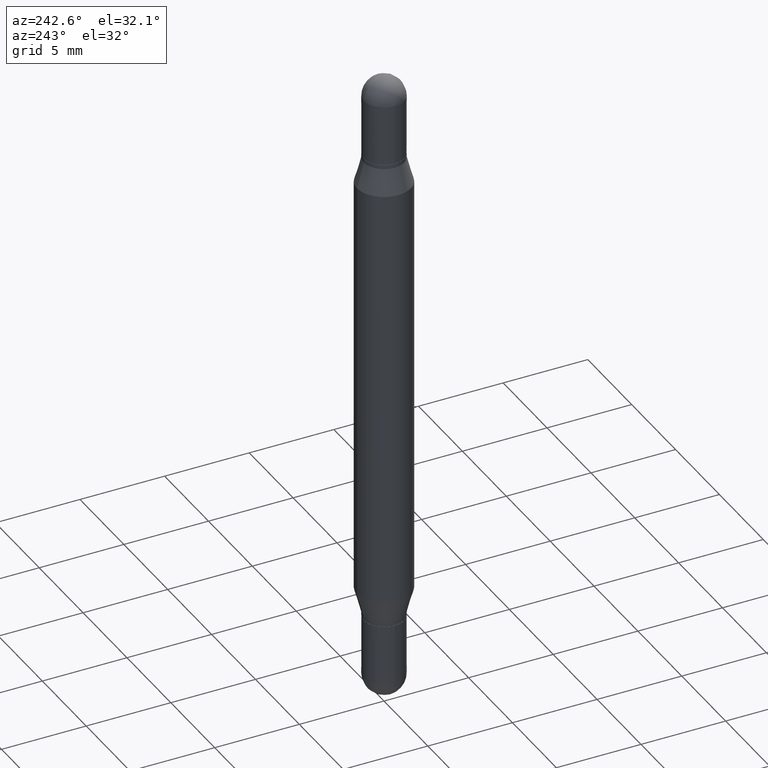
[diagram: clean part render]
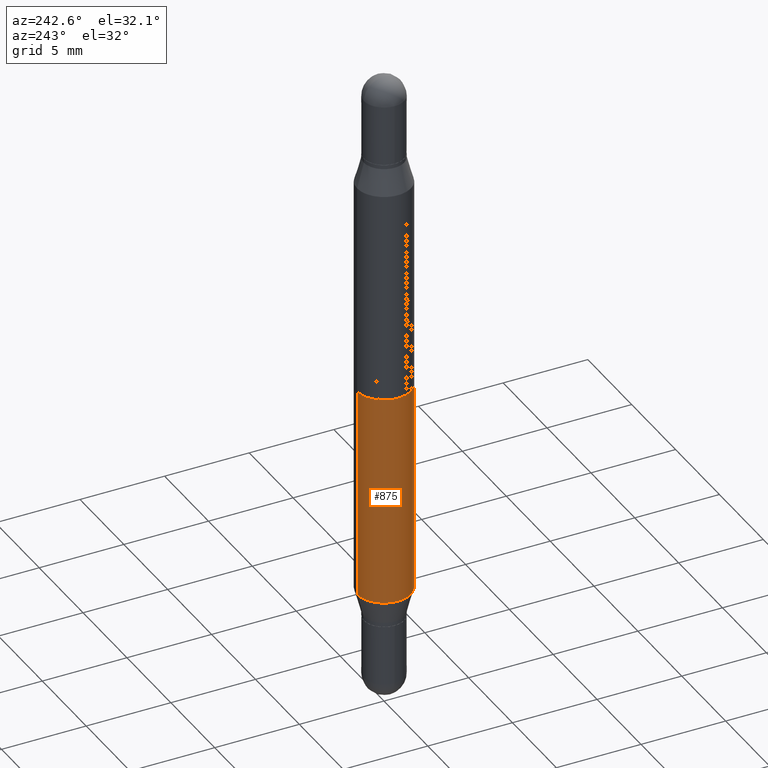
[diagram: same view with one face highlighted and labeled with its STEP entity id]
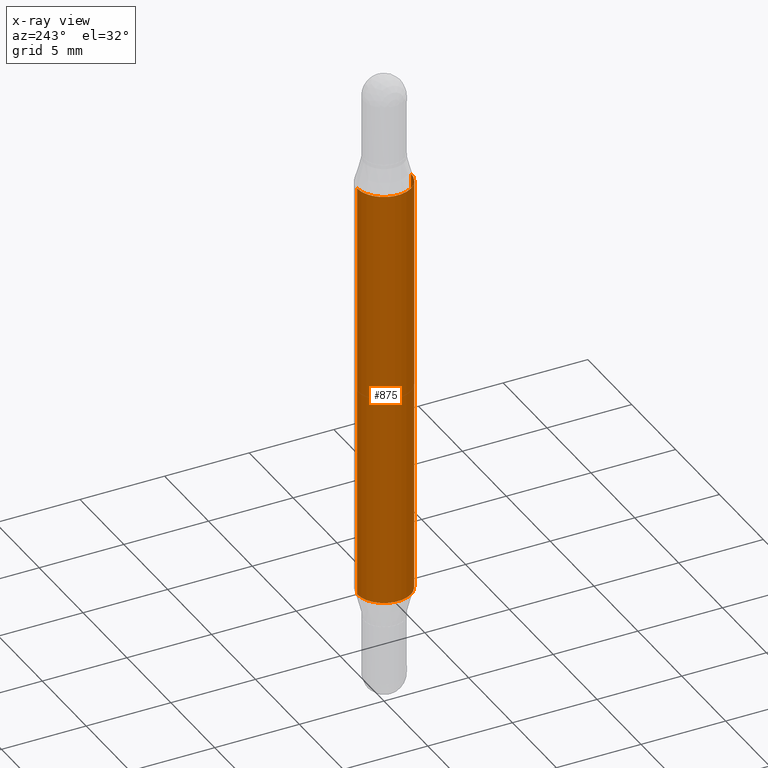
[diagram: x-ray of the same camera — body ghosted, the highlighted face saturated]
A machine part, auxiliary view. The second image highlights one B-rep face of the part: STEP entity #875.
The next image is the same camera in x-ray: the body ghosted, the highlighted face saturated — about 0% of this face is hidden behind the body in this view.
In plain terms, the highlighted cylindrical surface (edge-blend (fillet) strip) has radius 1.5875 mm, axis along (-0, -0, -1).
Its self-contained STEP definition (entity closure, byte-faithful):
#3 = FACE_OUTER_BOUND ( 'NONE', #73, .T. ) ;
#11 = VECTOR ( 'NONE', #383, 39.37007874015748143 ) ;
#12 = EDGE_CURVE ( 'NONE', #548, #465, #454, .T. ) ;
#73 = EDGE_LOOP ( 'NONE', ( #1016, #171, #675, #385 ) ) ;
#79 = AXIS2_PLACEMENT_3D ( 'NONE', #798, #903, #992 ) ;
#98 = DIRECTION ( 'NONE',  ( -6.982962677686265922E-15, -1.000000000000000000, 4.370956789862821150E-15 ) ) ;
#161 = CIRCLE ( 'NONE', #79, 0.06250000000000000000 ) ;
#171 = ORIENTED_EDGE ( 'NONE', *, *, #12, .T. ) ;
#191 = AXIS2_PLACEMENT_3D ( 'NONE', #595, #848, #98 ) ;
#198 = CARTESIAN_POINT ( 'NONE',  ( 4.287811248607390144E-16, 0.06249999999999565625, -1.244780007401924848 ) ) ;
#296 = DIRECTION ( 'NONE',  ( -2.445609517047438880E-29, -3.479815972941410420E-15, -1.000000000000000000 ) ) ;
#383 = DIRECTION ( 'NONE',  ( -2.445609517047438880E-29, -3.479815972941410420E-15, -1.000000000000000000 ) ) ;
#385 = ORIENTED_EDGE ( 'NONE', *, *, #721, .F. ) ;
#430 = VERTEX_POINT ( 'NONE', #951 ) ;
#448 = VECTOR ( 'NONE', #296, 39.37007874015748143 ) ;
#454 = LINE ( 'NONE', #963, #448 ) ;
#465 = VERTEX_POINT ( 'NONE', #198 ) ;
#548 = VERTEX_POINT ( 'NONE', #978 ) ;
#563 = CARTESIAN_POINT ( 'NONE',  ( 3.044245832732528794E-29, -4.345875336214013130E-15, -1.244780007401924626 ) ) ;
#595 = CARTESIAN_POINT ( 'NONE',  ( 0.000000000000000000, -5.228321854365732350E-15, -1.500000000000000444 ) ) ;
#618 = AXIS2_PLACEMENT_3D ( 'NONE', #563, #825, #912 ) ;
#626 = EDGE_CURVE ( 'NONE', #548, #430, #161, .T. ) ;
#675 = ORIENTED_EDGE ( 'NONE', *, *, #1059, .T. ) ;
#680 = CYLINDRICAL_SURFACE ( 'NONE', #191, 0.06250000000000000000 ) ;
#689 = CIRCLE ( 'NONE', #618, 0.06250000000000000000 ) ;
#721 = EDGE_CURVE ( 'NONE', #430, #755, #930, .T. ) ;
#737 = CARTESIAN_POINT ( 'NONE',  ( -4.364351673553611504E-16, -0.06250000000000434375, -1.244780007401924404 ) ) ;
#755 = VERTEX_POINT ( 'NONE', #737 ) ;
#798 = CARTESIAN_POINT ( 'NONE',  ( 3.044245832732528794E-29, -8.967165018103877989E-16, -0.2552199925980758177 ) ) ;
#825 = DIRECTION ( 'NONE',  ( -2.445609517047439160E-29, 3.491279832879563417E-15, 1.000000000000000000 ) ) ;
#848 = DIRECTION ( 'NONE',  ( -2.445609517047439160E-29, -3.479815972941410420E-15, -1.000000000000000000 ) ) ;
#875 = ADVANCED_FACE ( 'NONE', ( #3 ), #680, .T. ) ;
#903 = DIRECTION ( 'NONE',  ( 2.445609517047439160E-29, 3.479815972941410420E-15, 1.000000000000000000 ) ) ;
#912 = DIRECTION ( 'NONE',  ( -6.982962677686265922E-15, -1.000000000000000000, 4.370956789862821150E-15 ) ) ;
#930 = LINE ( 'NONE', #1081, #11 ) ;
#951 = CARTESIAN_POINT ( 'NONE',  ( -4.364351673553612490E-16, -0.06250000000000090206, -0.2552199925980755957 ) ) ;
#963 = CARTESIAN_POINT ( 'NONE',  ( 4.287811248607206733E-16, 0.06249999999999477501, -1.500000000000000666 ) ) ;
#978 = CARTESIAN_POINT ( 'NONE',  ( 4.287811248607510938E-16, 0.06249999999999910488, -0.2552199925980759843 ) ) ;
#992 = DIRECTION ( 'NONE',  ( -6.982962677686265922E-15, -1.000000000000000000, 3.278217592397115862E-15 ) ) ;
#1016 = ORIENTED_EDGE ( 'NONE', *, *, #626, .F. ) ;
#1059 = EDGE_CURVE ( 'NONE', #465, #755, #689, .T. ) ;
#1081 = CARTESIAN_POINT ( 'NONE',  ( -4.364351673553916201E-16, -0.06250000000000521805, -1.500000000000000222 ) ) ;